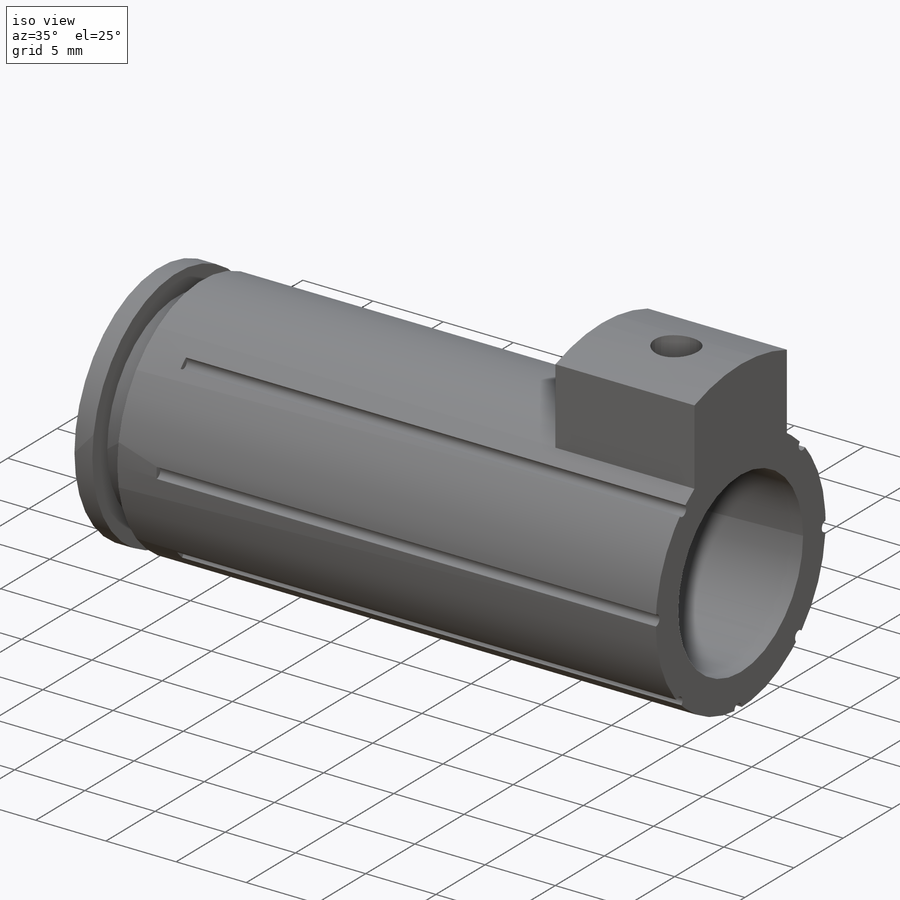
[diagram: iso view]
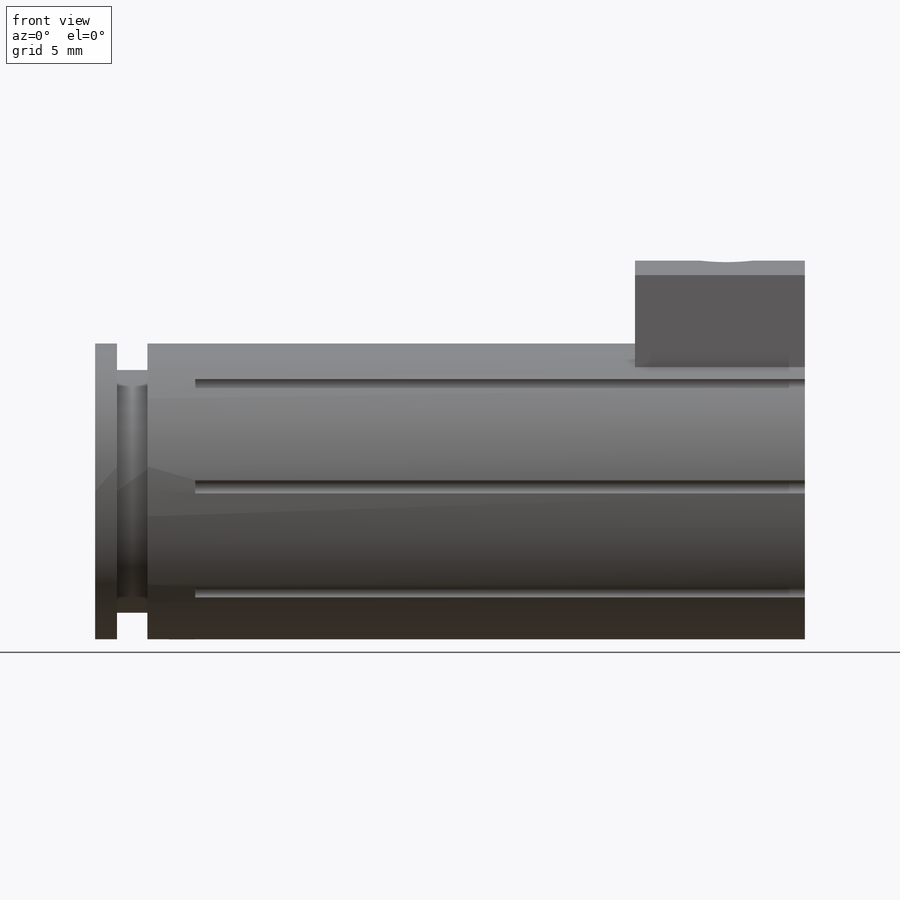
[diagram: front view]
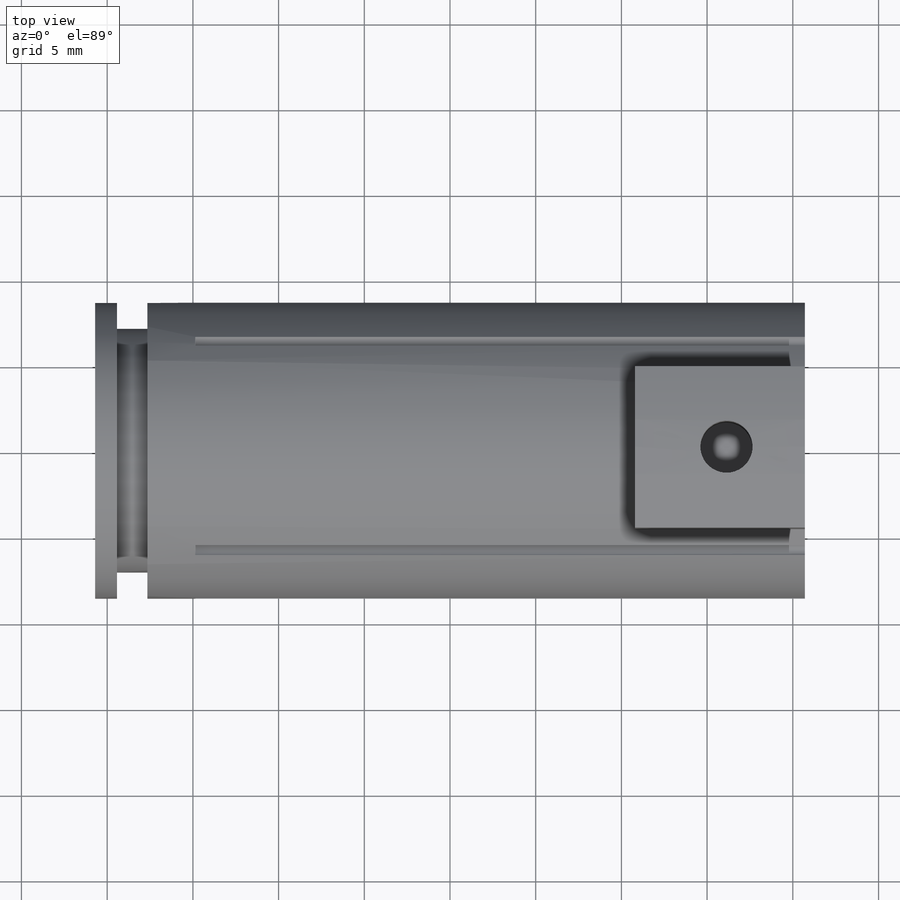
[diagram: top view]
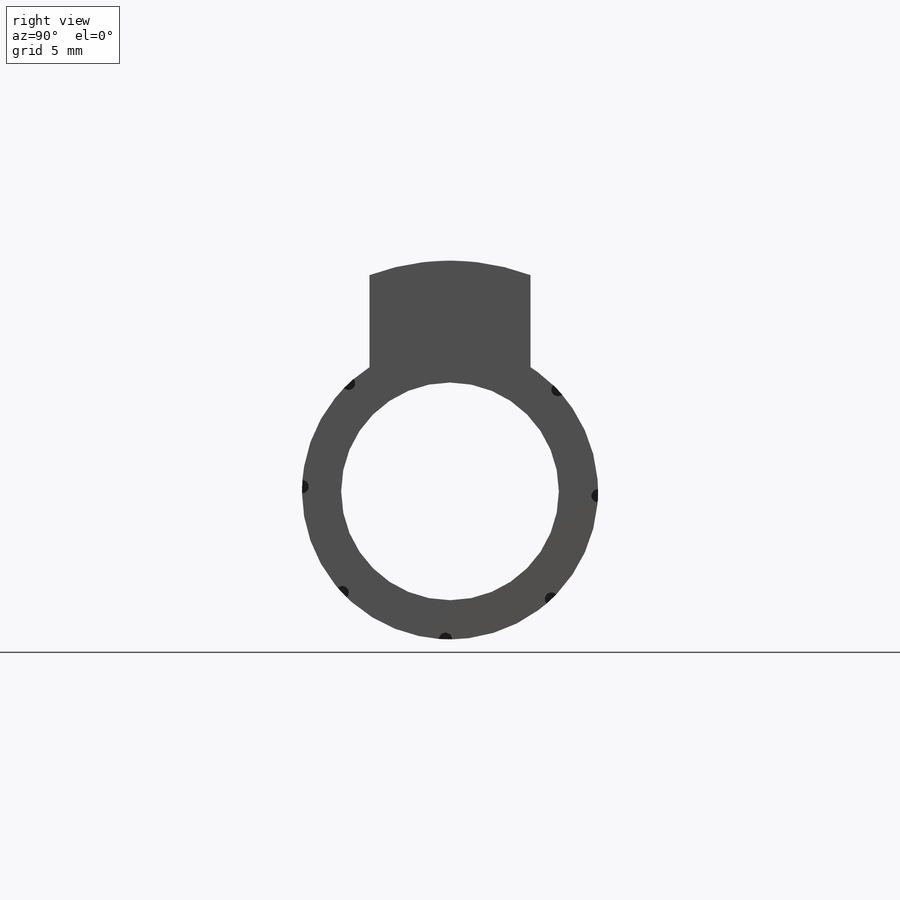
[diagram: right view]
SOLIDWORKS PART (.sldprt)
format: sldprt  version: not decoded by parser v0  size: 268,288 bytes
history: native  units: mm
features: sketch x6, cut_extrude x4, material x1, revolve x1, extrude x1, plane x1, pattern_circular x1 (+13 scaffold rows collapsed)
feature tree (28):
  scaffold x13  (default folders/planes/origin — collapsed)
  material  "ABS"
  sketch  "Sketch1"  dims[D1=41.402mm D2=1.27mm D3=1.778mm D4=1.524mm D5=8.636mm]
  revolve  "Revolve1"  Angle=360deg
  sketch  "Sketch6"  dims[D1=4.699mm D2=4.699mm D3=9.906mm]
  extrude  "Boss-Extrude1"  Depth=13.462mm
  sketch  "Sketch7"  dims[D1=26.924mm]
  cut_extrude  "Cut-Extrude1"  Depth=13.462mm
  plane  "Plane2"  Offset=13.462mm
  sketch  "Sketch8"  dims[D1=3.048mm D2=4.572mm]
  cut_extrude  "Cut-Extrude2"  Depth=6.35mm
  sketch  "Sketch9"  dims[D1=12.7mm]
  cut_extrude  "Cut-Extrude3"  [1 undecoded]
  sketch  "Sketch10"  dims[D1=0.762mm]
  cut_extrude  "Cut-Extrude4"  Depth=35.56mm
  pattern_circular  "CirPattern1"  Count=8 Angle=360deg
decode coverage: 12 of 13 modeling features carry decoded parameters
note: 1 parameter value undecoded
note: suppression state not decoded; provenance and decode notes live in map.json
